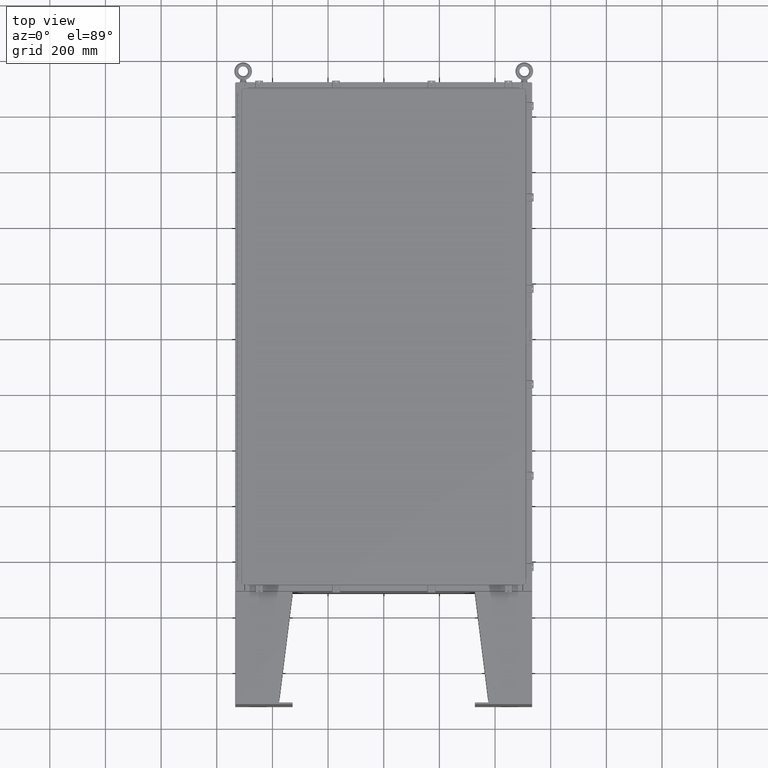
[diagram: clean part render]
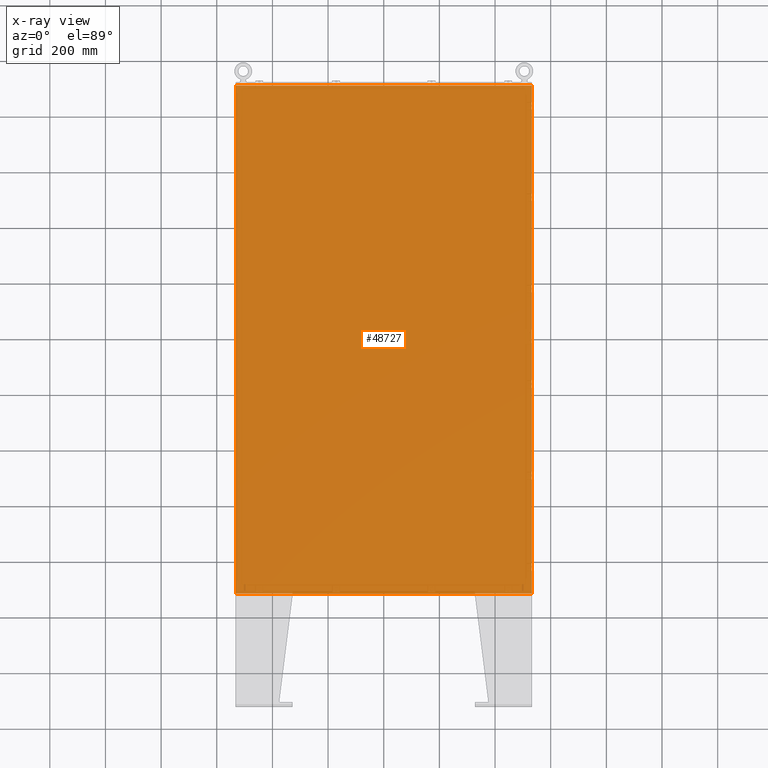
[diagram: x-ray — body ghosted, one internal face saturated and labeled with its STEP entity id]
A machine part, top view, then the same camera in x-ray: the body is ghosted and one INTERNAL B-rep face — a face not visible from any outside direction — is saturated and labeled: STEP entity #48727.
In plain terms, the highlighted planar face has unit normal (0, 0, -1).
Its self-contained STEP definition (entity closure, byte-faithful):
#1240 = VECTOR ( 'NONE', #2352, 39.37007874015748100 ) ;
#2352 = DIRECTION ( 'NONE',  ( 1.000000000000000000, 0.0000000000000000000, 0.0000000000000000000 ) ) ;
#4182 = LINE ( 'NONE', #25278, #22044 ) ;
#4790 = CARTESIAN_POINT ( 'NONE',  ( 20.91230000000000900, 35.92530000000000000, 4.481938114605432000E-017 ) ) ;
#5558 = ORIENTED_EDGE ( 'NONE', *, *, #7925, .F. ) ;
#6179 = DIRECTION ( 'NONE',  ( -0.0000000000000000000, -1.000000000000000000, -0.0000000000000000000 ) ) ;
#6965 = CARTESIAN_POINT ( 'NONE',  ( -20.91230000000000500, 35.92530000000000000, 4.908789363615472800E-017 ) ) ;
#7897 = DIRECTION ( 'NONE',  ( 0.0000000000000000000, 0.0000000000000000000, -1.000000000000000000 ) ) ;
#7925 = EDGE_CURVE ( 'NONE', #34814, #8065, #61879, .T. ) ;
#8065 = VERTEX_POINT ( 'NONE', #60355 ) ;
#9873 = EDGE_CURVE ( 'NONE', #50858, #8065, #48757, .T. ) ;
#13456 = CARTESIAN_POINT ( 'NONE',  ( -21.00000000000000000, -35.92529999999999300, 0.0000000000000000000 ) ) ;
#15657 = CARTESIAN_POINT ( 'NONE',  ( 20.91230000000000900, 35.92530000000000000, 4.481938114605432000E-017 ) ) ;
#22044 = VECTOR ( 'NONE', #66400, 39.37007874015748100 ) ;
#24928 = EDGE_CURVE ( 'NONE', #50858, #64086, #64710, .T. ) ;
#25278 = CARTESIAN_POINT ( 'NONE',  ( -20.99999999999999600, 35.92530000000000000, 0.0000000000000000000 ) ) ;
#26734 = EDGE_CURVE ( 'NONE', #34814, #64086, #4182, .T. ) ;
#31575 = VECTOR ( 'NONE', #45485, 39.37007874015748100 ) ;
#34814 = VERTEX_POINT ( 'NONE', #4790 ) ;
#37167 = FACE_OUTER_BOUND ( 'NONE', #71543, .T. ) ;
#43524 = PLANE ( 'NONE',  #52610 ) ;
#45485 = DIRECTION ( 'NONE',  ( -0.0000000000000000000, 1.000000000000000000, -0.0000000000000000000 ) ) ;
#46232 = VECTOR ( 'NONE', #6179, 39.37007874015748100 ) ;
#48727 = ADVANCED_FACE ( 'NONE', ( #37167 ), #43524, .F. ) ;
#48757 = LINE ( 'NONE', #13456, #1240 ) ;
#49482 = DIRECTION ( 'NONE',  ( -1.000000000000000000, 0.0000000000000000000, -0.0000000000000000000 ) ) ;
#50858 = VERTEX_POINT ( 'NONE', #63593 ) ;
#52610 = AXIS2_PLACEMENT_3D ( 'NONE', #66799, #7897, #49482 ) ;
#60355 = CARTESIAN_POINT ( 'NONE',  ( 20.91230000000000900, -35.92529999999999300, 4.481938114605432000E-017 ) ) ;
#61879 = LINE ( 'NONE', #15657, #46232 ) ;
#61965 = ORIENTED_EDGE ( 'NONE', *, *, #24928, .F. ) ;
#63593 = CARTESIAN_POINT ( 'NONE',  ( -20.91230000000000500, -35.92530000000000000, 4.908789363615472800E-017 ) ) ;
#64086 = VERTEX_POINT ( 'NONE', #6965 ) ;
#64710 = LINE ( 'NONE', #75010, #31575 ) ;
#66400 = DIRECTION ( 'NONE',  ( -1.000000000000000000, -0.0000000000000000000, -0.0000000000000000000 ) ) ;
#66799 = CARTESIAN_POINT ( 'NONE',  ( 0.0000000000000000000, 0.0000000000000000000, 0.0000000000000000000 ) ) ;
#68570 = ORIENTED_EDGE ( 'NONE', *, *, #26734, .T. ) ;
#71543 = EDGE_LOOP ( 'NONE', ( #61965, #76787, #5558, #68570 ) ) ;
#75010 = CARTESIAN_POINT ( 'NONE',  ( -20.91230000000000500, -35.92530000000000000, 4.908789363615472800E-017 ) ) ;
#76787 = ORIENTED_EDGE ( 'NONE', *, *, #9873, .T. ) ;